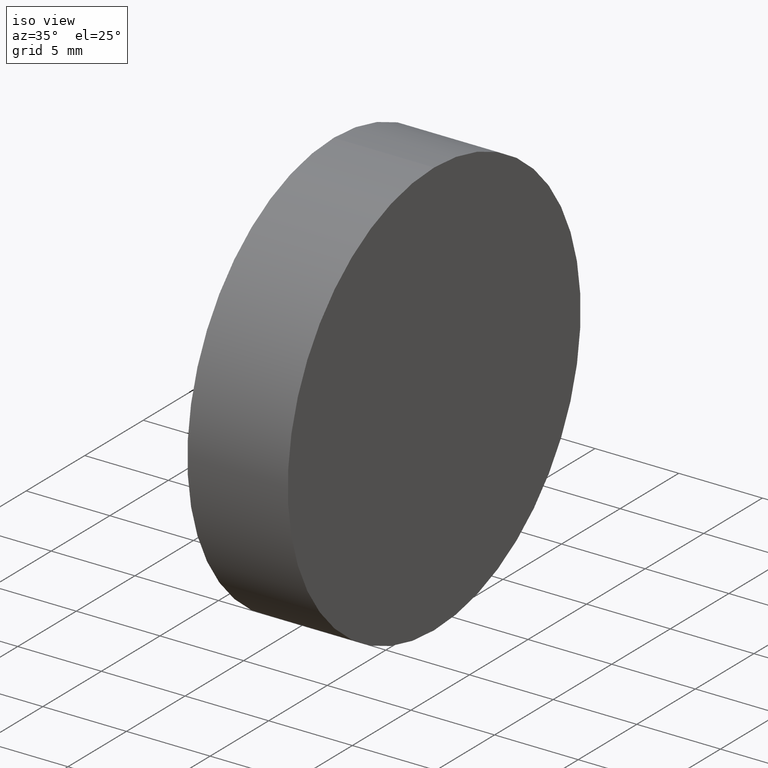
[diagram: clean part render]
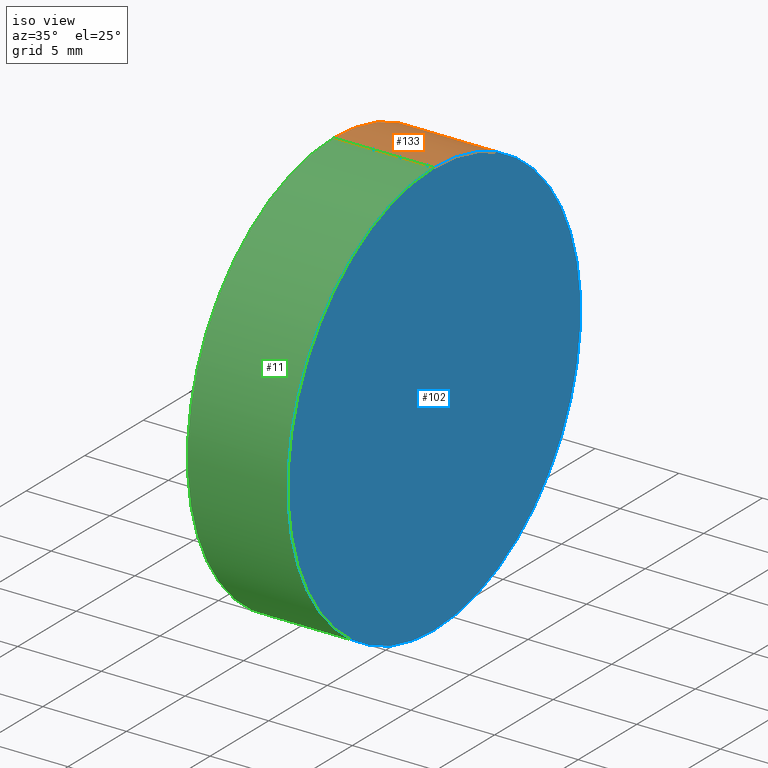
[diagram: same view with three faces highlighted in distinct colors, each labeled with its STEP entity id]
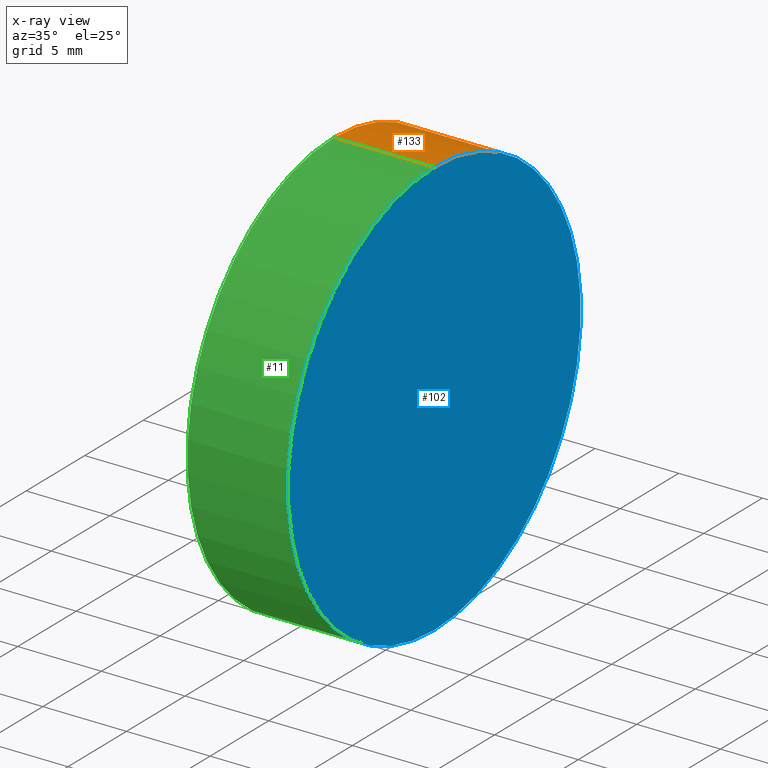
[diagram: x-ray of the same camera — body ghosted, the three highlighted faces saturated]
A machine part, iso view with three faces highlighted in distinct colors.
The next image is the same camera in x-ray (body ghosted, the three faces saturated) — at least one of them is partly hidden behind the body in this view.
Their STEP definitions:

[orange] entity #133 — the highlighted cylindrical surface (partial cylindrical patch) has radius 12.5 mm, axis along (-1, -0, -0).
#5 = LINE ( 'NONE', #103, #73 ) ;
#19 = CIRCLE ( 'NONE', #43, 12.49999999999999600 ) ;
#20 = ORIENTED_EDGE ( 'NONE', *, *, #49, .T. ) ;
#21 = DIRECTION ( 'NONE',  ( -1.000000000000000000, -0.0000000000000000000, -0.0000000000000000000 ) ) ;
#22 = CARTESIAN_POINT ( 'NONE',  ( 266.2862081684760400, 77.29317934901541800, 12.49999999999999600 ) ) ;
#27 = EDGE_LOOP ( 'NONE', ( #69, #20, #35, #118 ) ) ;
#31 = EDGE_CURVE ( 'NONE', #128, #130, #86, .T. ) ;
#32 = FACE_OUTER_BOUND ( 'NONE', #27, .T. ) ;
#33 = VECTOR ( 'NONE', #64, 1000.000000000000000 ) ;
#35 = ORIENTED_EDGE ( 'NONE', *, *, #132, .F. ) ;
#37 = EDGE_CURVE ( 'NONE', #128, #71, #5, .T. ) ;
#43 = AXIS2_PLACEMENT_3D ( 'NONE', #88, #21, #94 ) ;
#44 = CARTESIAN_POINT ( 'NONE',  ( 254.0008019926160300, 77.29317934901541800, -12.49999999999999600 ) ) ;
#49 = EDGE_CURVE ( 'NONE', #130, #50, #134, .T. ) ;
#50 = VERTEX_POINT ( 'NONE', #83 ) ;
#51 = CARTESIAN_POINT ( 'NONE',  ( 266.2862081684760400, 77.29317934901541800, 0.0000000000000000000 ) ) ;
#55 = CYLINDRICAL_SURFACE ( 'NONE', #122, 12.49999999999999600 ) ;
#64 = DIRECTION ( 'NONE',  ( -1.000000000000000000, -0.0000000000000000000, -0.0000000000000000000 ) ) ;
#68 = CARTESIAN_POINT ( 'NONE',  ( 266.2862081684760400, 77.29317934901541800, -12.49999999999999600 ) ) ;
#69 = ORIENTED_EDGE ( 'NONE', *, *, #31, .T. ) ;
#71 = VERTEX_POINT ( 'NONE', #137 ) ;
#73 = VECTOR ( 'NONE', #92, 1000.000000000000000 ) ;
#75 = DIRECTION ( 'NONE',  ( 0.0000000000000000000, 0.0000000000000000000, 1.000000000000000000 ) ) ;
#83 = CARTESIAN_POINT ( 'NONE',  ( 260.2862081684760400, 77.29317934901541800, -12.49999999999999600 ) ) ;
#86 = CIRCLE ( 'NONE', #129, 12.49999999999999600 ) ;
#88 = CARTESIAN_POINT ( 'NONE',  ( 260.2862081684760400, 77.29317934901541800, 0.0000000000000000000 ) ) ;
#92 = DIRECTION ( 'NONE',  ( -1.000000000000000000, -0.0000000000000000000, -0.0000000000000000000 ) ) ;
#94 = DIRECTION ( 'NONE',  ( 0.0000000000000000000, 0.0000000000000000000, 1.000000000000000000 ) ) ;
#103 = CARTESIAN_POINT ( 'NONE',  ( 254.0008019926160300, 77.29317934901541800, 12.49999999999999600 ) ) ;
#105 = CARTESIAN_POINT ( 'NONE',  ( 254.0008019926160300, 77.29317934901541800, 0.0000000000000000000 ) ) ;
#107 = DIRECTION ( 'NONE',  ( 0.0000000000000000000, 0.0000000000000000000, 1.000000000000000000 ) ) ;
#111 = DIRECTION ( 'NONE',  ( -1.000000000000000000, -0.0000000000000000000, -0.0000000000000000000 ) ) ;
#118 = ORIENTED_EDGE ( 'NONE', *, *, #37, .F. ) ;
#122 = AXIS2_PLACEMENT_3D ( 'NONE', #105, #111, #107 ) ;
#124 = DIRECTION ( 'NONE',  ( -1.000000000000000000, -0.0000000000000000000, -0.0000000000000000000 ) ) ;
#128 = VERTEX_POINT ( 'NONE', #22 ) ;
#129 = AXIS2_PLACEMENT_3D ( 'NONE', #51, #124, #75 ) ;
#130 = VERTEX_POINT ( 'NONE', #68 ) ;
#132 = EDGE_CURVE ( 'NONE', #71, #50, #19, .T. ) ;
#133 = ADVANCED_FACE ( 'NONE', ( #32 ), #55, .T. ) ;
#134 = LINE ( 'NONE', #44, #33 ) ;
#137 = CARTESIAN_POINT ( 'NONE',  ( 260.2862081684760400, 77.29317934901541800, 12.49999999999999600 ) ) ;

[blue] entity #102 — the highlighted planar face has unit normal (-1, 0, -0).
#8 = AXIS2_PLACEMENT_3D ( 'NONE', #96, #25, #125 ) ;
#14 = DIRECTION ( 'NONE',  ( 0.0000000000000000000, 0.0000000000000000000, 1.000000000000000000 ) ) ;
#15 = ORIENTED_EDGE ( 'NONE', *, *, #31, .F. ) ;
#22 = CARTESIAN_POINT ( 'NONE',  ( 266.2862081684760400, 77.29317934901541800, 12.49999999999999600 ) ) ;
#25 = DIRECTION ( 'NONE',  ( -1.000000000000000000, 0.0000000000000000000, -0.0000000000000000000 ) ) ;
#29 = CIRCLE ( 'NONE', #110, 12.49999999999999600 ) ;
#31 = EDGE_CURVE ( 'NONE', #128, #130, #86, .T. ) ;
#51 = CARTESIAN_POINT ( 'NONE',  ( 266.2862081684760400, 77.29317934901541800, 0.0000000000000000000 ) ) ;
#58 = ORIENTED_EDGE ( 'NONE', *, *, #91, .F. ) ;
#68 = CARTESIAN_POINT ( 'NONE',  ( 266.2862081684760400, 77.29317934901541800, -12.49999999999999600 ) ) ;
#70 = FACE_OUTER_BOUND ( 'NONE', #90, .T. ) ;
#75 = DIRECTION ( 'NONE',  ( 0.0000000000000000000, 0.0000000000000000000, 1.000000000000000000 ) ) ;
#76 = PLANE ( 'NONE',  #8 ) ;
#84 = DIRECTION ( 'NONE',  ( -1.000000000000000000, -0.0000000000000000000, -0.0000000000000000000 ) ) ;
#86 = CIRCLE ( 'NONE', #129, 12.49999999999999600 ) ;
#90 = EDGE_LOOP ( 'NONE', ( #15, #58 ) ) ;
#91 = EDGE_CURVE ( 'NONE', #130, #128, #29, .T. ) ;
#96 = CARTESIAN_POINT ( 'NONE',  ( 266.2862081684760400, 77.29317934901541800, 0.0000000000000000000 ) ) ;
#102 = ADVANCED_FACE ( 'NONE', ( #70 ), #76, .F. ) ;
#110 = AXIS2_PLACEMENT_3D ( 'NONE', #139, #84, #14 ) ;
#124 = DIRECTION ( 'NONE',  ( -1.000000000000000000, -0.0000000000000000000, -0.0000000000000000000 ) ) ;
#125 = DIRECTION ( 'NONE',  ( -0.0000000000000000000, 0.0000000000000000000, 1.000000000000000000 ) ) ;
#128 = VERTEX_POINT ( 'NONE', #22 ) ;
#129 = AXIS2_PLACEMENT_3D ( 'NONE', #51, #124, #75 ) ;
#130 = VERTEX_POINT ( 'NONE', #68 ) ;
#139 = CARTESIAN_POINT ( 'NONE',  ( 266.2862081684760400, 77.29317934901541800, 0.0000000000000000000 ) ) ;

[green] entity #11 — the highlighted cylindrical surface (partial cylindrical patch) has radius 12.5 mm, axis along (-1, -0, -0).
#5 = LINE ( 'NONE', #103, #73 ) ;
#9 = ORIENTED_EDGE ( 'NONE', *, *, #37, .T. ) ;
#10 = DIRECTION ( 'NONE',  ( -1.000000000000000000, -0.0000000000000000000, -0.0000000000000000000 ) ) ;
#11 = ADVANCED_FACE ( 'NONE', ( #62 ), #78, .T. ) ;
#14 = DIRECTION ( 'NONE',  ( 0.0000000000000000000, 0.0000000000000000000, 1.000000000000000000 ) ) ;
#22 = CARTESIAN_POINT ( 'NONE',  ( 266.2862081684760400, 77.29317934901541800, 12.49999999999999600 ) ) ;
#24 = CIRCLE ( 'NONE', #117, 12.49999999999999600 ) ;
#29 = CIRCLE ( 'NONE', #110, 12.49999999999999600 ) ;
#33 = VECTOR ( 'NONE', #64, 1000.000000000000000 ) ;
#37 = EDGE_CURVE ( 'NONE', #128, #71, #5, .T. ) ;
#41 = ORIENTED_EDGE ( 'NONE', *, *, #91, .T. ) ;
#42 = EDGE_CURVE ( 'NONE', #50, #71, #24, .T. ) ;
#44 = CARTESIAN_POINT ( 'NONE',  ( 254.0008019926160300, 77.29317934901541800, -12.49999999999999600 ) ) ;
#45 = CARTESIAN_POINT ( 'NONE',  ( 260.2862081684760400, 77.29317934901541800, 0.0000000000000000000 ) ) ;
#49 = EDGE_CURVE ( 'NONE', #130, #50, #134, .T. ) ;
#50 = VERTEX_POINT ( 'NONE', #83 ) ;
#52 = CARTESIAN_POINT ( 'NONE',  ( 254.0008019926160300, 77.29317934901541800, 0.0000000000000000000 ) ) ;
#62 = FACE_OUTER_BOUND ( 'NONE', #108, .T. ) ;
#63 = DIRECTION ( 'NONE',  ( -1.000000000000000000, -0.0000000000000000000, -0.0000000000000000000 ) ) ;
#64 = DIRECTION ( 'NONE',  ( -1.000000000000000000, -0.0000000000000000000, -0.0000000000000000000 ) ) ;
#68 = CARTESIAN_POINT ( 'NONE',  ( 266.2862081684760400, 77.29317934901541800, -12.49999999999999600 ) ) ;
#71 = VERTEX_POINT ( 'NONE', #137 ) ;
#73 = VECTOR ( 'NONE', #92, 1000.000000000000000 ) ;
#74 = DIRECTION ( 'NONE',  ( 0.0000000000000000000, 0.0000000000000000000, 1.000000000000000000 ) ) ;
#78 = CYLINDRICAL_SURFACE ( 'NONE', #100, 12.49999999999999600 ) ;
#81 = ORIENTED_EDGE ( 'NONE', *, *, #49, .F. ) ;
#82 = DIRECTION ( 'NONE',  ( 0.0000000000000000000, 0.0000000000000000000, 1.000000000000000000 ) ) ;
#83 = CARTESIAN_POINT ( 'NONE',  ( 260.2862081684760400, 77.29317934901541800, -12.49999999999999600 ) ) ;
#84 = DIRECTION ( 'NONE',  ( -1.000000000000000000, -0.0000000000000000000, -0.0000000000000000000 ) ) ;
#91 = EDGE_CURVE ( 'NONE', #130, #128, #29, .T. ) ;
#92 = DIRECTION ( 'NONE',  ( -1.000000000000000000, -0.0000000000000000000, -0.0000000000000000000 ) ) ;
#97 = ORIENTED_EDGE ( 'NONE', *, *, #42, .F. ) ;
#100 = AXIS2_PLACEMENT_3D ( 'NONE', #52, #10, #82 ) ;
#103 = CARTESIAN_POINT ( 'NONE',  ( 254.0008019926160300, 77.29317934901541800, 12.49999999999999600 ) ) ;
#108 = EDGE_LOOP ( 'NONE', ( #81, #41, #9, #97 ) ) ;
#110 = AXIS2_PLACEMENT_3D ( 'NONE', #139, #84, #14 ) ;
#117 = AXIS2_PLACEMENT_3D ( 'NONE', #45, #63, #74 ) ;
#128 = VERTEX_POINT ( 'NONE', #22 ) ;
#130 = VERTEX_POINT ( 'NONE', #68 ) ;
#134 = LINE ( 'NONE', #44, #33 ) ;
#137 = CARTESIAN_POINT ( 'NONE',  ( 260.2862081684760400, 77.29317934901541800, 12.49999999999999600 ) ) ;
#139 = CARTESIAN_POINT ( 'NONE',  ( 266.2862081684760400, 77.29317934901541800, 0.0000000000000000000 ) ) ;